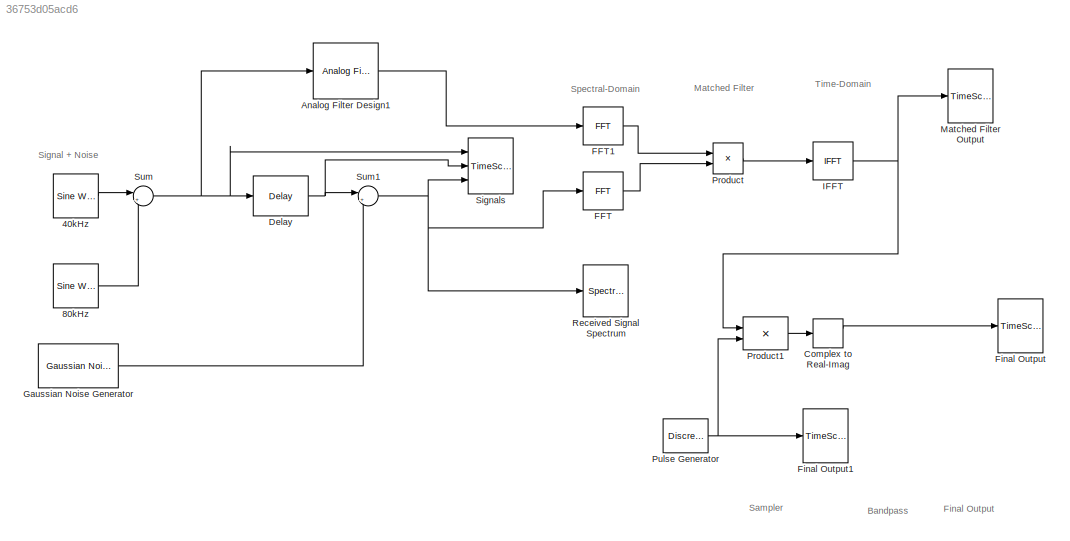
MODEL slx_36753d05acd6
KIND model
BLOCK [Reference] 40kHz  REF=dspsrcs4/Sine Wave
  Amplitude = 1
  CompMethod = Trigonometric fcn
  Frequency = f
  LastOutDataTypeStr = double
  OutComplex = Real
  OutDataTypeStr = double
  Phase = 0
  Ports = [0, 1]
  ResetState = Restart at time zero
  SampleMode = Discrete
  SampleTime = Tsample
  SamplesPerFrame = 1
  SourceBlock = dspsrcs4/Sine Wave
  SourceType = Sine Wave
  TableSize = Speed
  additionalParams = off
  allowOverrides = on
  dataType = double
  fracBitsMode = Best precision
  numFracBits = 15
  udDataType = sfix(16)
  wordLen = 16
BLOCK [Reference] 80kHz  REF=dspsrcs4/Sine Wave
  Amplitude = 0.5
  CompMethod = Trigonometric fcn
  Frequency = f*2
  LastOutDataTypeStr = double
  OutComplex = Real
  OutDataTypeStr = double
  Phase = 0
  Ports = [0, 1]
  ResetState = Restart at time zero
  SampleMode = Discrete
  SampleTime = Tsample/2
  SamplesPerFrame = 1
  SourceBlock = dspsrcs4/Sine Wave
  SourceType = Sine Wave
  TableSize = Speed
  additionalParams = off
  allowOverrides = on
  dataType = double
  fracBitsMode = Best precision
  numFracBits = 15
  udDataType = sfix(16)
  wordLen = 16
BLOCK [Reference] Analog Filter Design1  REF=dsparch4/Analog
Filter Design
  N = 8
  Ports = [1, 1]
  Rp = 2
  Rs = 40
  SourceBlock = dsparch4/Analog\nFilter Design
  SourceType = Analog Filter Design
  Whi = 2*pi*41E3
  Wlo = 2*pi*39E3
  filttype = Bandpass
  method = Butterworth
BLOCK [ComplexToRealImag] Complex to Real-Imag
  Ports = [1, 2]
BLOCK [Reference] Delay  REF=dspsigops/Delay
  InputProcessing = Elements as channels (sample based)
  Ports = [1, 1]
  SourceBlock = dspsigops/Delay
  SourceType = Delay
  UserDataPersistent = on
  delay = delay
  dif_ic_for_ch = off
  dif_ic_for_dly = off
  dly_unit = Samples
  ic = 0
  ic_detail = off
  reset_popup = None
BLOCK [Reference] FFT  REF=dspxfrm3/FFT
  BitRevOrder = off
  CompMethod = Table lookup
  FFTImplementation = Auto
  FFTLength = 64
  InheritFFTLength = on
  LockScale = off
  Ports = [1, 1]
  RowConvenienceOn = on
  SkipNorm = off
  SourceBlock = dspxfrm3/FFT
  SourceType = FFT
  TableOpt = NEW
  TableOptActive = Speed
  WrapInput = on
  accumDataTypeStr = Inherit: Inherit via internal rule
  accumFracLength = 30
  accumLastDataTypeStr = Inherit: Inherit via internal rule
  accumMode = Inherit via internal rule
  accumWordLength = 32
  additionalParams = off
  allowOverrides = on
  firstCoeffDataTypeStr = Inherit: Same word length as input
  firstCoeffFracLength = 15
  firstCoeffLastDataTypeStr = Inherit: Same word length as input
  firstCoeffMode = Same word length as input
  firstCoeffWordLength = 16
  outputDataTypeStr = Inherit: Inherit via internal rule
  outputFracLength = 15
  outputLastDataTypeStr = Inherit: Inherit via internal rule
  outputMax = []
  outputMin = []
  outputMode = Inherit via internal rule
  outputWordLength = 16
  overflowMode = off
  prodOutputDataTypeStr = Inherit: Inherit via internal rule
  prodOutputFracLength = 30
  prodOutputLastDataTypeStr = Inherit: Inherit via internal rule
  prodOutputMode = Inherit via internal rule
  prodOutputWordLength = 32
  roundingMode = Floor
BLOCK [Reference] FFT1  REF=dspxfrm3/FFT
  BitRevOrder = off
  CompMethod = Table lookup
  FFTImplementation = Auto
  FFTLength = 64
  InheritFFTLength = on
  LockScale = off
  Ports = [1, 1]
  RowConvenienceOn = on
  SkipNorm = off
  SourceBlock = dspxfrm3/FFT
  SourceType = FFT
  TableOpt = NEW
  TableOptActive = Speed
  WrapInput = on
  accumDataTypeStr = Inherit: Inherit via internal rule
  accumFracLength = 30
  accumLastDataTypeStr = Inherit: Inherit via internal rule
  accumMode = Inherit via internal rule
  accumWordLength = 32
  additionalParams = off
  allowOverrides = on
  firstCoeffDataTypeStr = Inherit: Same word length as input
  firstCoeffFracLength = 15
  firstCoeffLastDataTypeStr = Inherit: Same word length as input
  firstCoeffMode = Same word length as input
  firstCoeffWordLength = 16
  outputDataTypeStr = Inherit: Inherit via internal rule
  outputFracLength = 15
  outputLastDataTypeStr = Inherit: Inherit via internal rule
  outputMax = []
  outputMin = []
  outputMode = Inherit via internal rule
  outputWordLength = 16
  overflowMode = off
  prodOutputDataTypeStr = Inherit: Inherit via internal rule
  prodOutputFracLength = 30
  prodOutputLastDataTypeStr = Inherit: Inherit via internal rule
  prodOutputMode = Inherit via internal rule
  prodOutputWordLength = 32
  roundingMode = Floor
BLOCK [TimeScope] Final Output
  DefaultConfigurationName = spbscopes.TimeScopeBlockCfg
  NumInputPorts = 1
  Ports = [1]
BLOCK [TimeScope] Final Output1
  DefaultConfigurationName = spbscopes.TimeScopeBlockCfg
  NumInputPorts = 1
  Ports = [1]
BLOCK [Reference] Gaussian Noise Generator  REF=commnoisgen2/Gaussian Noise
Generator
  Ports = [0, 1]
  SourceBlock = commnoisgen2/Gaussian Noise\nGenerator
  SourceType = Gaussian Noise Generator
  Ts = Tsample
  d = 1
  frameBased = off
  m = 0
  orient = off
  outDataType = double
  s = 41
  sampPerFrame = 1
BLOCK [Reference] IFFT  REF=dspxfrm3/IFFT
  BitRevOrder = off
  CompMethod = Table lookup
  FFTImplementation = Auto
  FFTLength = 64
  InheritFFTLength = on
  LockScale = off
  Ports = [1, 1]
  RowConvenienceOn = on
  SkipNorm = on
  SourceBlock = dspxfrm3/IFFT
  SourceType = IFFT
  TableOpt = NEW
  TableOptActive = Speed
  WrapInput = on
  accumDataTypeStr = Inherit: Inherit via internal rule
  accumFracLength = 30
  accumLastDataTypeStr = Inherit: Inherit via internal rule
  accumMode = Inherit via internal rule
  accumWordLength = 32
  additionalParams = off
  allowOverrides = on
  cs_in = off
  firstCoeffDataTypeStr = Inherit: Same word length as input
  firstCoeffFracLength = 15
  firstCoeffLastDataTypeStr = Inherit: Same word length as input
  firstCoeffMode = Same word length as input
  firstCoeffWordLength = 16
  mode = Complex
  outSamplingMode = Sample based
  outputDataTypeStr = Inherit: Inherit via internal rule
  outputFracLength = 15
  outputLastDataTypeStr = Inherit: Inherit via internal rule
  outputMax = []
  outputMin = []
  outputMode = Inherit via internal rule
  outputWordLength = 16
  overflowMode = off
  prodOutputDataTypeStr = Inherit: Inherit via internal rule
  prodOutputFracLength = 30
  prodOutputLastDataTypeStr = Inherit: Inherit via internal rule
  prodOutputMode = Inherit via internal rule
  prodOutputWordLength = 32
  roundingMode = Nearest
BLOCK [TimeScope] Matched Filter Output
  DefaultConfigurationName = spbscopes.TimeScopeBlockCfg
  NumInputPorts = 1
  Ports = [1]
BLOCK [Product] Product
  InputSameDT = off
  OutDataTypeStr = Inherit: Inherit via internal rule
  Ports = [2, 1]
  RndMeth = Floor
  SaturateOnIntegerOverflow = off
BLOCK [Product] Product1
  InputSameDT = off
  Ports = [2, 1]
  RndMeth = Floor
BLOCK [DiscretePulseGenerator] Pulse Generator
  Amplitude = 10000
  Period = 1
  Ports = [0, 1]
  SampleTime = Tsample*40
BLOCK [SpectrumAnalyzer] Received Signal Spectrum
  Ports = [1]
BLOCK [TimeScope] Signals
  DefaultConfigurationName = spbscopes.TimeScopeBlockCfg
  NumInputPorts = 3
  Ports = [3]
BLOCK [Sum] Sum
  IconShape = round
  InputSameDT = off
  Inputs = |++
  OutDataTypeStr = Inherit: Inherit via internal rule
  Ports = [2, 1]
  SaturateOnIntegerOverflow = off
BLOCK [Sum] Sum1
  IconShape = round
  InputSameDT = off
  Inputs = |++
  OutDataTypeStr = Inherit: Inherit via internal rule
  Ports = [2, 1]
  SaturateOnIntegerOverflow = off
ANNOTATION (root): Bandpass
ANNOTATION (root): Final Output
ANNOTATION (root): Matched Filter
ANNOTATION (root): Sampler
ANNOTATION (root): Signal + Noise
ANNOTATION (root): Spectral-Domain
ANNOTATION (root): Time-Domain
LINE 40kHz:1 -> Sum:1
LINE 80kHz:1 -> Sum:2
LINE Analog Filter Design1:1 -> FFT1:1
LINE Complex to Real-Imag:1 -> Final Output:1
NET Delay:1 -> Signals:2, Sum1:1
LINE FFT1:1 -> Product:1
LINE FFT:1 -> Product:2
LINE Gaussian Noise Generator:1 -> Sum1:2
NET IFFT:1 -> Matched Filter Output:1, Product1:1
LINE Product1:1 -> Complex to Real-Imag:1
LINE Product:1 -> IFFT:1
NET Pulse Generator:1 -> Final Output1:1, Product1:2
NET Sum1:1 -> FFT:1, Received Signal Spectrum:1, Signals:3
NET Sum:1 -> Analog Filter Design1:1, Delay:1, Signals:1
note: NET lines group one-source signal fan-out (src -> all destinations, sorted); 1:1 wires keep LINE
